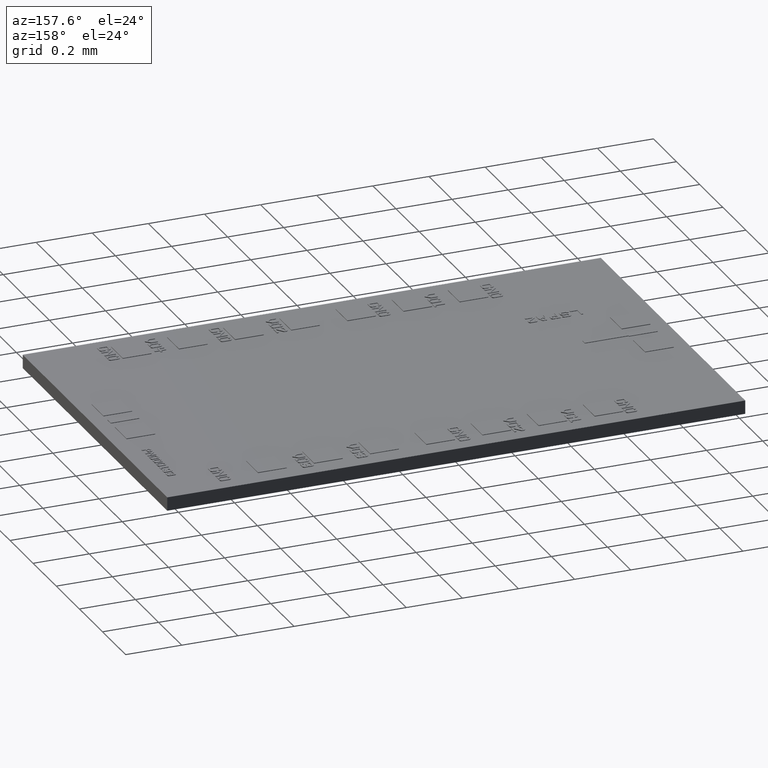
[diagram: clean part render]
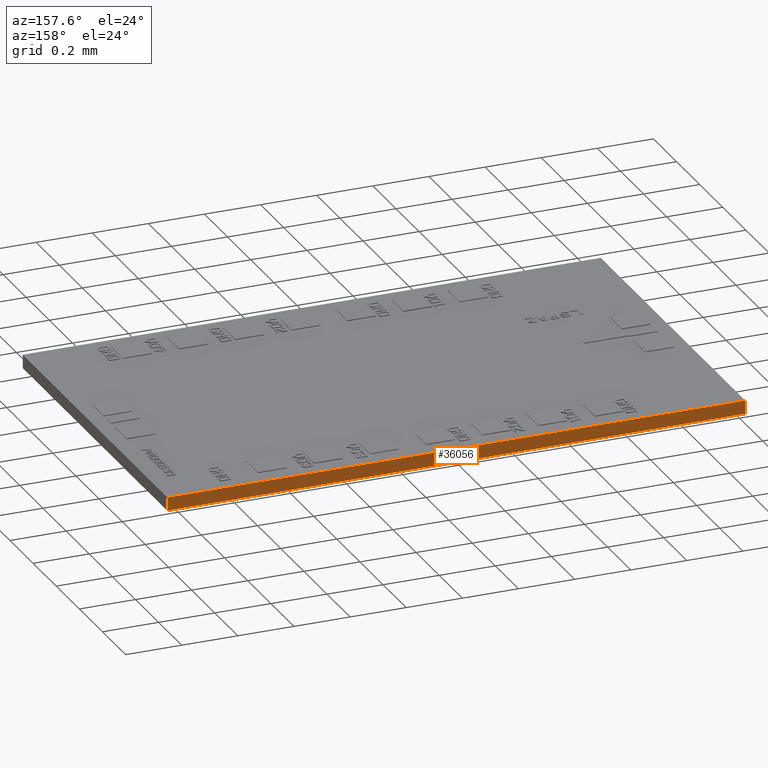
[diagram: same view with one face highlighted and labeled with its STEP entity id]
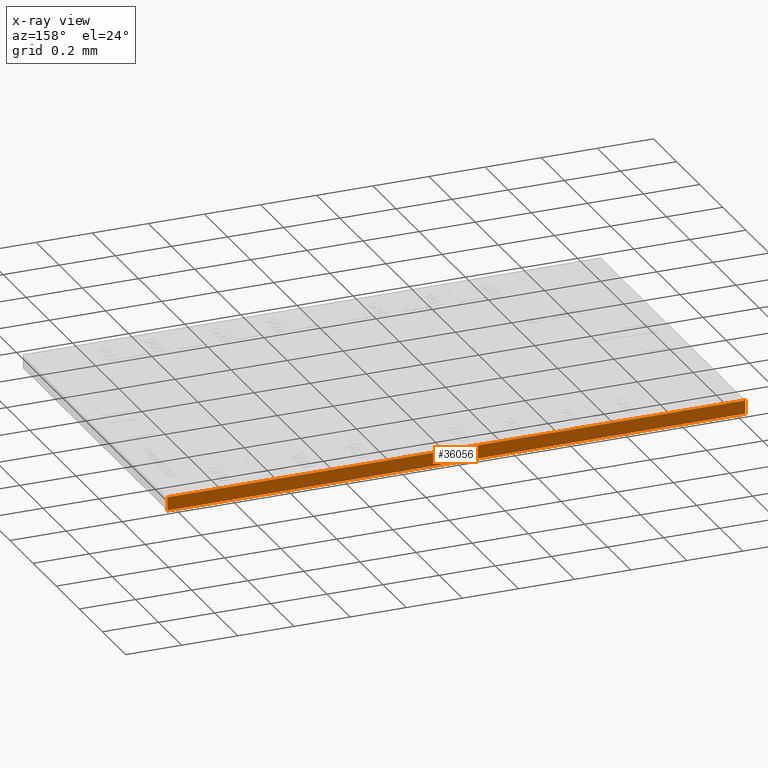
[diagram: x-ray of the same camera — body ghosted, the highlighted face saturated]
A machine part, auxiliary view. The second image highlights one B-rep face of the part: STEP entity #36056.
The next image is the same camera in x-ray: the body ghosted, the highlighted face saturated — about 0% of this face is hidden behind the body in this view.
In plain terms, the highlighted planar face has unit normal (0, 1, 0).
Its self-contained STEP definition (entity closure, byte-faithful):
#32925=CARTESIAN_POINT('',(0.081102362204725,0.049212598425197,0.001889763779528));
#32926=VERTEX_POINT('',#32925);
#32933=CARTESIAN_POINT('',(1.123532E-016,0.049212598425197,0.001889763779528));
#32934=VERTEX_POINT('',#32933);
#32935=CARTESIAN_POINT('',(1.123532E-016,0.049212598425197,0.001889763779528));
#32936=DIRECTION('',(1.0,0.0,0.0));
#32937=VECTOR('',#32936,0.081102362204724);
#32938=LINE('',#32935,#32937);
#32939=EDGE_CURVE('',#32934,#32926,#32938,.T.);
#34231=CARTESIAN_POINT('',(1.123532E-016,0.049212598425197,0.0));
#34232=VERTEX_POINT('',#34231);
#34233=CARTESIAN_POINT('',(1.123532E-016,0.049212598425197,0.0));
#34234=DIRECTION('',(0.0,0.0,1.0));
#34235=VECTOR('',#34234,0.001889763779528);
#34236=LINE('',#34233,#34235);
#34237=EDGE_CURVE('',#34232,#32934,#34236,.T.);
#36033=CARTESIAN_POINT('',(1.123532E-016,0.049212598425197,0.0));
#36034=DIRECTION('',(0.0,1.0,0.0));
#36035=DIRECTION('',(0.0,0.0,1.0));
#36036=AXIS2_PLACEMENT_3D('',#36033,#36034,#36035);
#36037=PLANE('',#36036);
#36038=ORIENTED_EDGE('',*,*,#32939,.T.);
#36039=CARTESIAN_POINT('',(0.081102362204725,0.049212598425197,0.0));
#36040=VERTEX_POINT('',#36039);
#36041=CARTESIAN_POINT('',(0.081102362204725,0.049212598425197,0.0));
#36042=DIRECTION('',(0.0,0.0,1.0));
#36043=VECTOR('',#36042,0.001889763779528);
#36044=LINE('',#36041,#36043);
#36045=EDGE_CURVE('',#36040,#32926,#36044,.T.);
#36046=ORIENTED_EDGE('',*,*,#36045,.F.);
#36047=CARTESIAN_POINT('',(0.081102362204725,0.049212598425197,0.0));
#36048=DIRECTION('',(-1.0,0.0,0.0));
#36049=VECTOR('',#36048,0.081102362204724);
#36050=LINE('',#36047,#36049);
#36051=EDGE_CURVE('',#36040,#34232,#36050,.T.);
#36052=ORIENTED_EDGE('',*,*,#36051,.T.);
#36053=ORIENTED_EDGE('',*,*,#34237,.T.);
#36054=EDGE_LOOP('',(#36038,#36046,#36052,#36053));
#36055=FACE_OUTER_BOUND('',#36054,.T.);
#36056=ADVANCED_FACE('',(#36055),#36037,.T.);